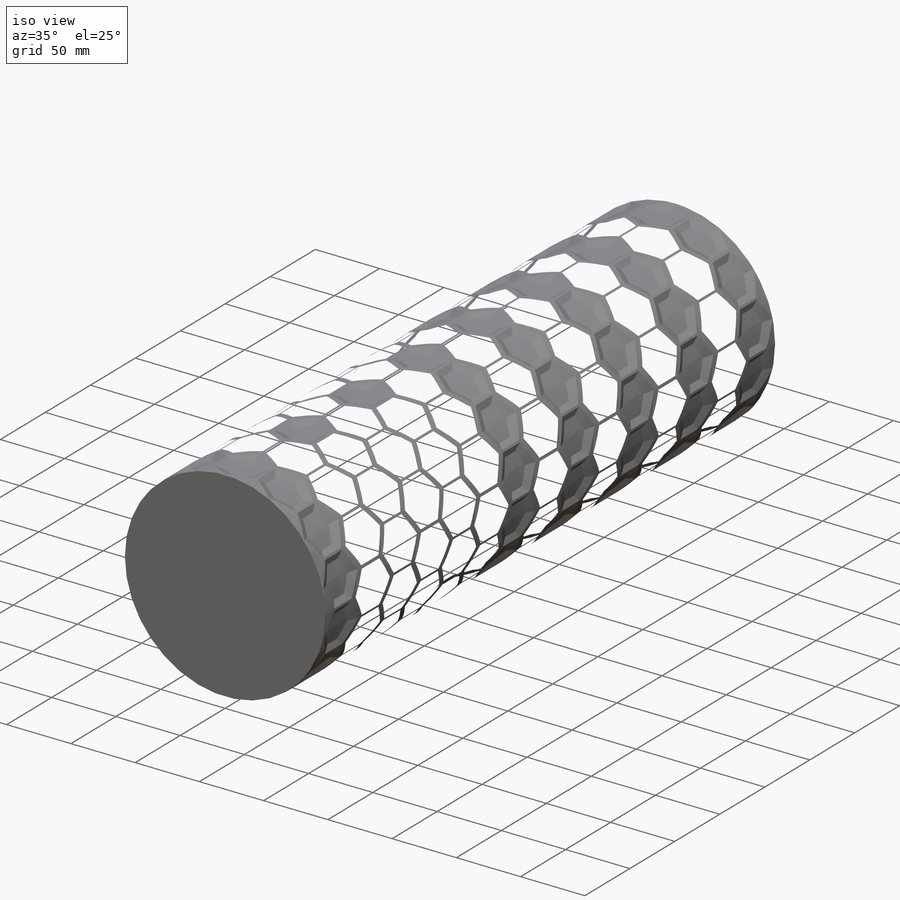
[diagram: iso view]
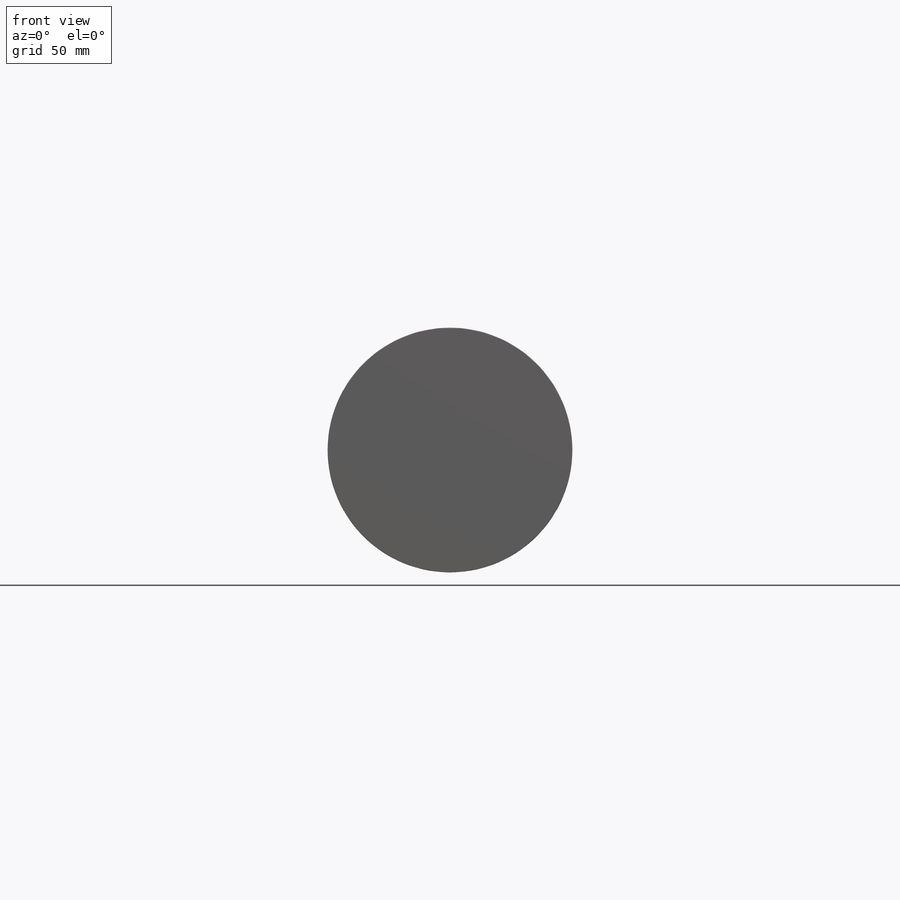
[diagram: front view]
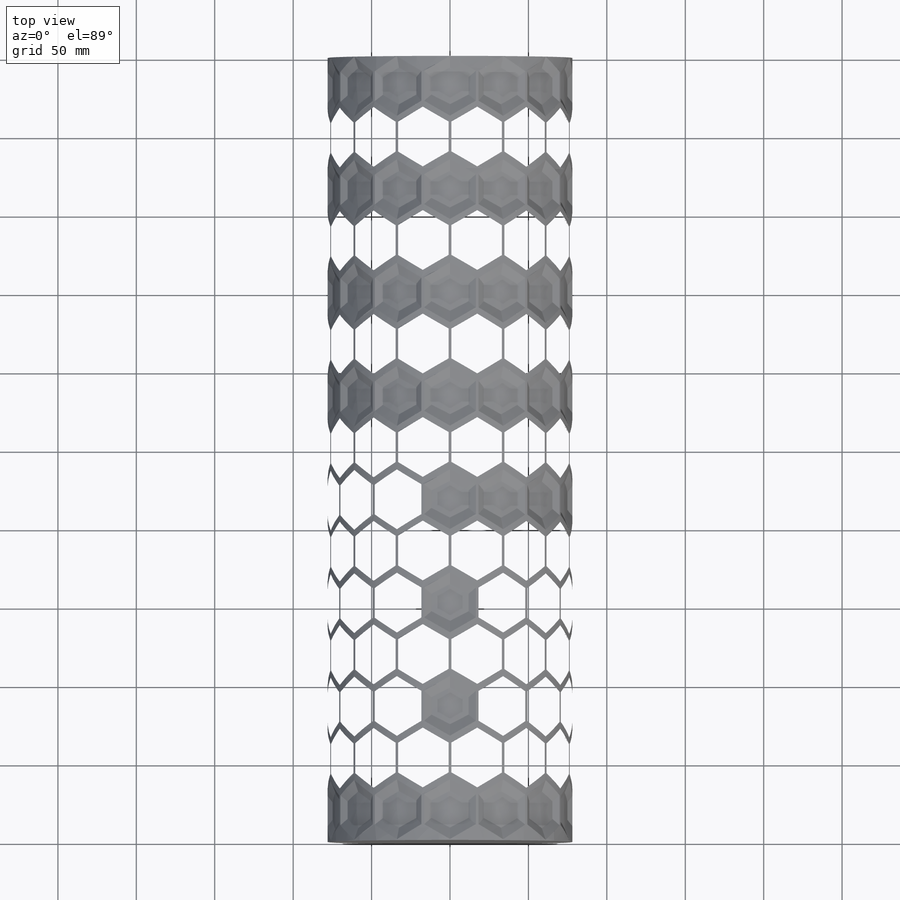
[diagram: top view]
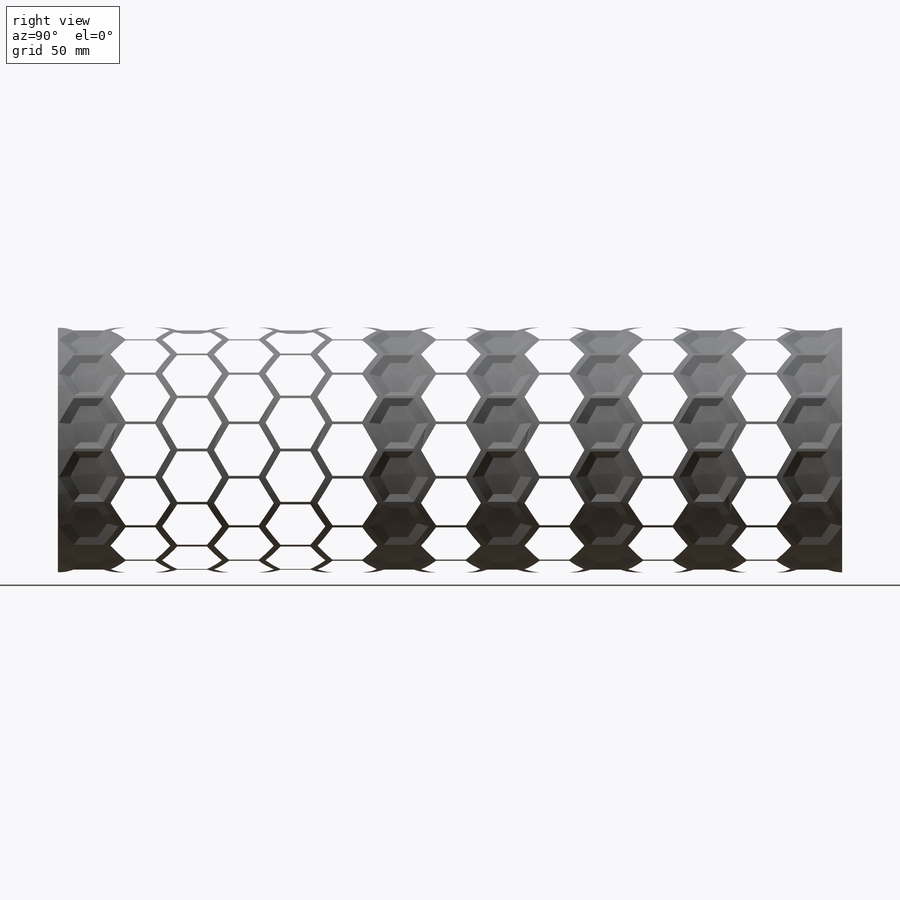
[diagram: right view]
SOLIDWORKS PART (.sldprt)
format: sldprt  version: not decoded by parser v0  size: 5,906,432 bytes
history: native  units: mm
features: sketch x8, plane x5, extrude x2, cut_extrude x2, pattern_linear x2, pattern_circular x2, material x1 (+12 scaffold rows collapsed)
feature tree (34):
  scaffold x12  (default folders/planes/origin — collapsed)
  material  "Material <not specified>"
  sketch  "Sketch1"  dims[D1=~60.752182mm]
  extrude  "Boss-Extrude1"  Depth=500mm
  sketch  "Sketch2"  dims[D1=33.0mm]
  sketch  "3DSketch6"
  cut_extrude  "Cut-Extrude4"  Depth=3mm
  sketch  "Sketch19"
  pattern_linear  "LPattern26"  Count1=10 Count2=1 Spacing1=65.9mm Spacing2=50mm
  pattern_circular  "CirPattern8"  Count=14 Angle=360deg
  sketch  "3DSketch7"
  plane  "second row"
  sketch  "Sketch21"  dims[D1=~18.575758mm]
  extrude  "Curve4"  [1 undecoded]
  plane  "Plane5"
  plane  "Plane6"
  sketch  "Sketch22"
  plane  "Plane7"
  plane  "Plane8"
  sketch  "3DSketch10"
  cut_extrude  "Cut-Extrude5"  Depth=3mm
  pattern_linear  "LPattern27"  Count1=7 Count2=1 Spacing1=66mm Spacing2=50mm
  pattern_circular  "CirPattern9"  Count=14 Angle=360deg
decode coverage: 10 of 16 modeling features carry decoded parameters
note: ~ marks probable driven/reference dimensions
note: 1 parameter value undecoded
note: suppression state not decoded; provenance and decode notes live in map.json
